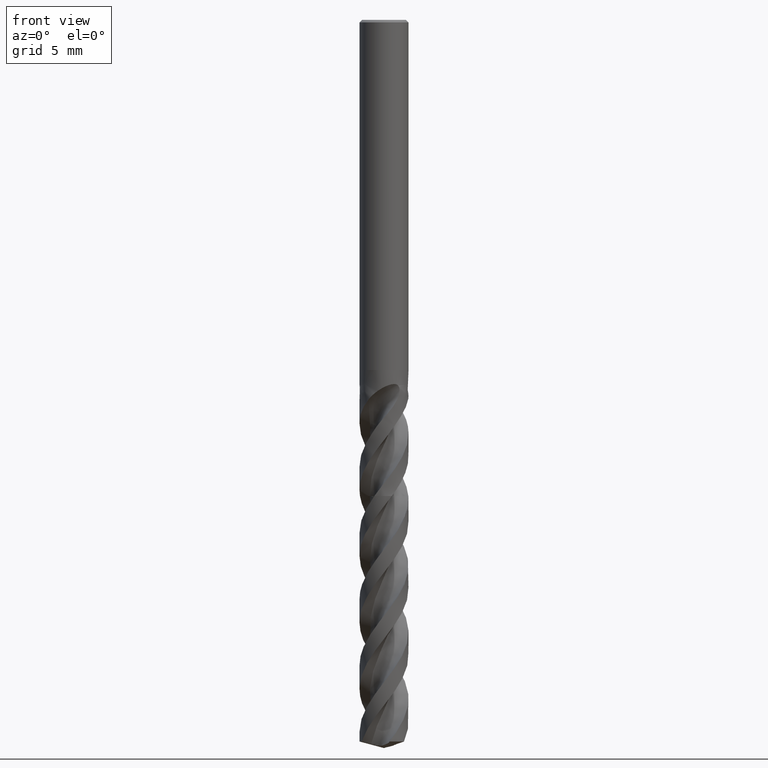
[diagram: clean part render]
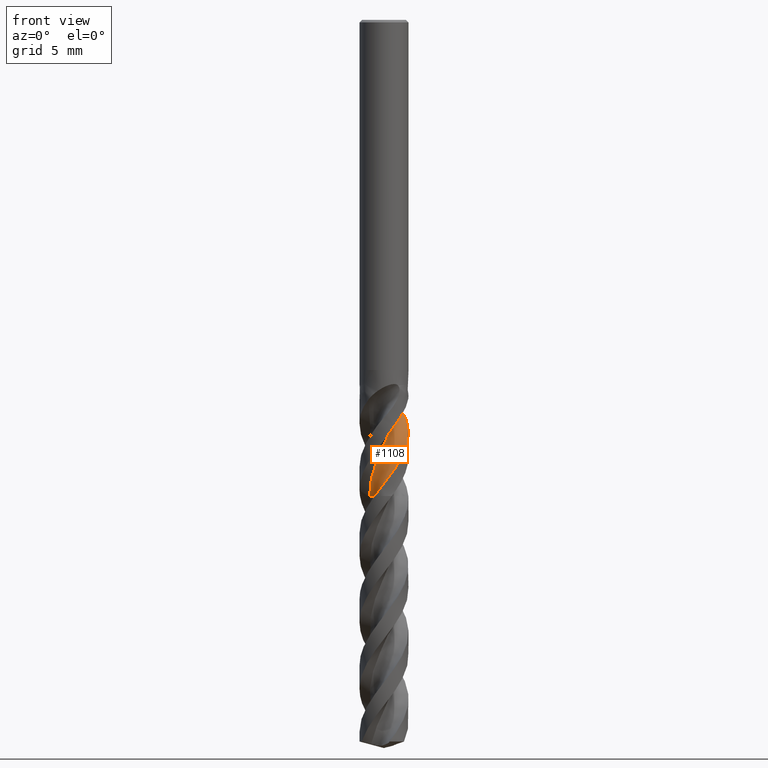
[diagram: same view with one face highlighted and labeled with its STEP entity id]
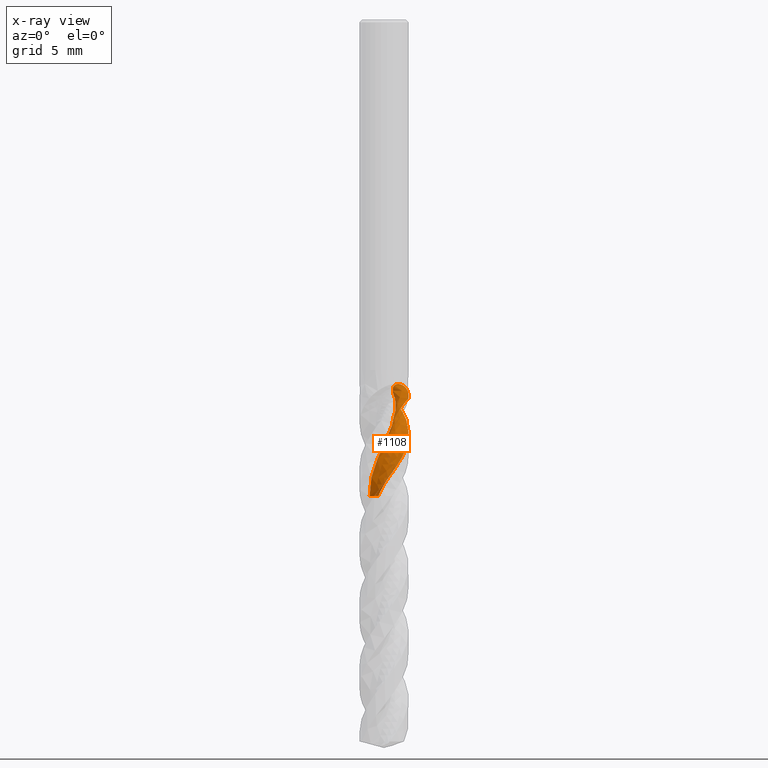
[diagram: x-ray of the same camera — body ghosted, the highlighted face saturated]
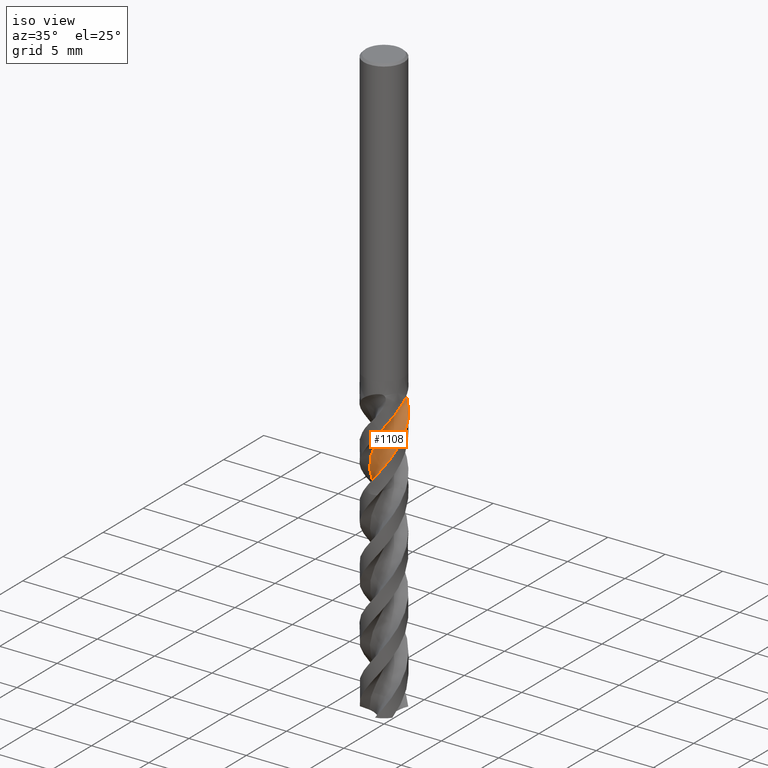
[diagram: same view with one face highlighted and labeled with its STEP entity id]
A machine part, front view. The second image highlights one B-rep face of the part: STEP entity #1108.
The next image is the same camera in x-ray: the body ghosted, the highlighted face saturated — about 0% of this face is hidden behind the body in this view.
A second angle (iso view) of the same face is appended — the face is thin or edge-on in the first view.
In plain terms, the highlighted face is a freeform B-spline surface patch.
Its self-contained STEP definition (entity closure, byte-faithful):
#1108 = ADVANCED_FACE('', (#1109), #1466, .T.);
#1109 = FACE_OUTER_BOUND('', #1110, .T.);
#1110 = EDGE_LOOP('', (#1111, #1170, #1187, #1241, #1254, #1362, #1370, #1430));
#1111 = ORIENTED_EDGE('', *, *, #1112, .T.);
#1112 = EDGE_CURVE('', #1113, #1115, #1117, .T.);
#1113 = VERTEX_POINT('', #1114);
#1114 = CARTESIAN_POINT('', (-1.02503396435404, 0.0574962500611559, -34.));
#1115 = VERTEX_POINT('', #1116);
#1116 = CARTESIAN_POINT('', (-0.670502086690427, -1.59048121163814, -34.));
#1117 = B_SPLINE_CURVE_WITH_KNOTS('', 3, (#1118, #1119, #1120, #1121, #1122, #1123, #1124, #1125, #1126, #1127, #1128, #1129, #1130, #1131, #1132, #1133, #1134, #1135, #1136, #1137, #1138, #1139, #1140, #1141, #1142, #1143, #1144, #1145, #1146, #1147, #1148, #1149, #1150, #1151, #1152, #1153, #1154, #1155, #1156, #1157, #1158, #1159, #1160, #1161, #1162, #1163, #1164, #1165, #1166, #1167, #1168, #1169), .UNSPECIFIED., .F., .U., (4, 3, 3, 3, 3, 3, 3, 3, 3, 3, 3, 3, 3, 3, 3, 3, 3, 4), (0., 0.132405407620457, 0.26452279113171, 0.396361651338164, 0.527928805751393, 0.659228644875832, 0.790263296003178, 0.921032707520729, 0.97924511088179, 0.99653781199313, 1.12892224755169, 1.2610194345411, 1.39283867113027, 1.52438659398431, 1.65566742734844, 1.78668314080873, 1.91743352824384, 1.97410964366291), .UNSPECIFIED.);
#1118 = CARTESIAN_POINT('', (-1.02503396435404, 0.0574962500611571, -34.));
#1119 = CARTESIAN_POINT('', (-0.984365017716057, 0.0403513675031409, -34.));
#1120 = CARTESIAN_POINT('', (-0.944719858379053, 0.0205435400083691, -34.));
#1121 = CARTESIAN_POINT('', (-0.906589343243396, -0.00168198662342289, -34.));
#1122 = CARTESIAN_POINT('', (-0.86854177417356, -0.023859165626332, -34.));
#1123 = CARTESIAN_POINT('', (-0.831845729181654, -0.04853472036374, -34.));
#1124 = CARTESIAN_POINT('', (-0.796953582973594, -0.0754044601028292, -34.));
#1125 = CARTESIAN_POINT('', (-0.762134994654852, -0.102217554391393, -34.));
#1126 = CARTESIAN_POINT('', (-0.728970054375333, -0.131325384460391, -34.));
#1127 = CARTESIAN_POINT('', (-0.697865890028722, -0.162370626900039, -34.));
#1128 = CARTESIAN_POINT('', (-0.666825828038832, -0.193351888414717, -34.));
#1129 = CARTESIAN_POINT('', (-0.637711402415984, -0.226388932153479, -34.));
#1130 = CARTESIAN_POINT('', (-0.610878550404343, -0.26107786506152, -34.));
#1131 = CARTESIAN_POINT('', (-0.584100216799037, -0.29569631774857, -34.));
#1132 = CARTESIAN_POINT('', (-0.559485365872423, -0.332100569837447, -34.));
#1133 = CARTESIAN_POINT('', (-0.537333707619282, -0.369847363790824, -34.));
#1134 = CARTESIAN_POINT('', (-0.515226789359149, -0.407517920052274, -34.));
#1135 = CARTESIAN_POINT('', (-0.495483632540437, -0.446678004923394, -34.));
#1136 = CARTESIAN_POINT('', (-0.478343662368155, -0.486852724169463, -34.));
#1137 = CARTESIAN_POINT('', (-0.461238386827874, -0.526946121972962, -34.));
#1138 = CARTESIAN_POINT('', (-0.446656793328059, -0.56821161022846, -34.));
#1139 = CARTESIAN_POINT('', (-0.434774999812552, -0.610150780244011, -34.));
#1140 = CARTESIAN_POINT('', (-0.429485783100854, -0.62882013000434, -34.));
#1141 = CARTESIAN_POINT('', (-0.424722995394439, -0.647646686958658, -34.));
#1142 = CARTESIAN_POINT('', (-0.420498063658775, -0.66658528209467, -34.));
#1143 = CARTESIAN_POINT('', (-0.419242996396435, -0.672211221692532, -34.));
#1144 = CARTESIAN_POINT('', (-0.418035164829521, -0.677847907419188, -34.));
#1145 = CARTESIAN_POINT('', (-0.416874824821477, -0.683494145215945, -34.));
#1146 = CARTESIAN_POINT('', (-0.407991831006228, -0.726718971629147, -34.));
#1147 = CARTESIAN_POINT('', (-0.401882765183737, -0.77060679134034, -34.));
#1148 = CARTESIAN_POINT('', (-0.398623241382012, -0.814614389572454, -34.));
#1149 = CARTESIAN_POINT('', (-0.395370790115244, -0.858526499845046, -34.));
#1150 = CARTESIAN_POINT('', (-0.394942102577829, -0.902738446354551, -34.));
#1151 = CARTESIAN_POINT('', (-0.397342461853958, -0.946705367365471, -34.));
#1152 = CARTESIAN_POINT('', (-0.399737770448564, -0.99057977601053, -34.));
#1153 = CARTESIAN_POINT('', (-0.404959992877188, -1.03438985551949, -34.));
#1154 = CARTESIAN_POINT('', (-0.412945040935157, -1.07759795944374, -34.));
#1155 = CARTESIAN_POINT('', (-0.420913653962321, -1.12071713133981, -34.));
#1156 = CARTESIAN_POINT('', (-0.431666181262131, -1.16341265483257, -34.));
#1157 = CARTESIAN_POINT('', (-0.445071206552883, -1.20516270962934, -34.));
#1158 = CARTESIAN_POINT('', (-0.458449014831847, -1.2468279968327, -34.));
#1159 = CARTESIAN_POINT('', (-0.474522851128559, -1.28772088946874, -34.));
#1160 = CARTESIAN_POINT('', (-0.493097057176486, -1.32734362008863, -34.));
#1161 = CARTESIAN_POINT('', (-0.51163375286136, -1.36688633312892, -34.));
#1162 = CARTESIAN_POINT('', (-0.532735672127253, -1.40532398532777, -34.));
#1163 = CARTESIAN_POINT('', (-0.55614698579985, -1.44219057770656, -34.));
#1164 = CARTESIAN_POINT('', (-0.579510888130428, -1.47898250983156, -34.));
#1165 = CARTESIAN_POINT('', (-0.605268932053112, -1.5143579928313, -34.));
#1166 = CARTESIAN_POINT('', (-0.633110099577923, -1.54788988201845, -34.));
#1167 = CARTESIAN_POINT('', (-0.645178356162024, -1.56242488462204, -34.));
#1168 = CARTESIAN_POINT('', (-0.657651808090229, -1.57663276560389, -34.));
#1169 = CARTESIAN_POINT('', (-0.670502086690426, -1.59048121163814, -34.));
#1170 = ORIENTED_EDGE('', *, *, #1171, .T.);
#1171 = EDGE_CURVE('', #1115, #1172, #1174, .T.);
#1172 = VERTEX_POINT('', #1173);
#1173 = CARTESIAN_POINT('', (0.776613653456091, -1.56823825781211, -32.057196210719));
#1174 = (
   BOUNDED_CURVE ()
   B_SPLINE_CURVE (3, (#1175, #1176, #1177, #1178, #1179, #1180, #1181, #1182, #1183, #1184, #1185, #1186), .UNSPECIFIED., .F., .U.)
   B_SPLINE_CURVE_WITH_KNOTS ((4, 1, 1, 1, 1, 1, 1, 1, 1, 4), (18.05, 18.1633027522936, 18.4022935779817, 18.6412844036697, 18.8802752293578, 19.1192660550459, 19.3582568807339, 19.597247706422, 19.8362385321101, 19.992803789281), .UNSPECIFIED.)
   CURVE ()
   GEOMETRIC_REPRESENTATION_ITEM ()
   RATIONAL_B_SPLINE_CURVE ((1., 1., 1., 1., 1., 1., 1., 1., 1., 1., 1., 1.))
   REPRESENTATION_ITEM ('')
);
#1175 = CARTESIAN_POINT('', (-0.670502086690427, -1.59048121163814, -34.));
#1176 = CARTESIAN_POINT('', (-0.644110130928657, -1.60205461877223, -33.9622324159021));
#1177 = CARTESIAN_POINT('', (-0.561122852633073, -1.63600736280558, -33.8448012232416));
#1178 = CARTESIAN_POINT('', (-0.417526440117084, -1.68213631177825, -33.6477064220184));
#1179 = CARTESIAN_POINT('', (-0.238210933050859, -1.71953606556329, -33.4087155963303));
#1180 = CARTESIAN_POINT('', (-0.0556618844331033, -1.73792836801334, -33.1697247706422));
#1181 = CARTESIAN_POINT('', (0.12811715590546, -1.73704689534467, -32.9307339449541));
#1182 = CARTESIAN_POINT('', (0.3111022507358, -1.71683534310611, -32.6917431192661));
#1183 = CARTESIAN_POINT('', (0.491270959219669, -1.67744879627866, -32.452752293578));
#1184 = CARTESIAN_POINT('', (0.646465117619341, -1.62594324760408, -32.2412366573956));
#1185 = CARTESIAN_POINT('', (0.74011760772385, -1.58551019663542, -32.109384629776));
#1186 = CARTESIAN_POINT('', (0.776613653456098, -1.56823825781211, -32.057196210719));
#1187 = ORIENTED_EDGE('', *, *, #1188, .F.);
#1188 = EDGE_CURVE('', #1189, #1172, #1191, .T.);
#1189 = VERTEX_POINT('', #1190);
#1190 = CARTESIAN_POINT('', (1.7475997663467, 0.0916245418267728, -29.4253887050529));
#1191 = B_SPLINE_CURVE_WITH_KNOTS('', 3, (#1192, #1193, #1194, #1195, #1196, #1197, #1198, #1199, #1200, #1201, #1202, #1203, #1204, #1205, #1206, #1207, #1208, #1209, #1210, #1211, #1212, #1213, #1214, #1215, #1216, #1217, #1218, #1219, #1220, #1221, #1222, #1223, #1224, #1225, #1226, #1227, #1228, #1229, #1230, #1231, #1232, #1233, #1234, #1235, #1236, #1237, #1238, #1239, #1240), .UNSPECIFIED., .F., .U., (4, 3, 3, 3, 3, 3, 3, 3, 3, 3, 3, 3, 3, 3, 3, 3, 4), (0., 0.131169654539322, 0.170081925427484, 0.301652375633295, 0.499119600400497, 0.696553910858351, 0.828074964348964, 1.02543849097338, 1.22276281252672, 1.42005864804645, 1.71604381888126, 2.01187493289743, 2.30755149551668, 2.60307884880536, 2.89845657935721, 3.19368569565501, 3.32701559196582), .UNSPECIFIED.);
#1192 = CARTESIAN_POINT('', (1.7475997663467, 0.091624541826765, -29.4253887050529));
#1193 = CARTESIAN_POINT('', (1.74896632215303, 0.0655595535580931, -29.4604667426232));
#1194 = CARTESIAN_POINT('', (1.74975440440563, 0.0393591049020367, -29.4954716976476));
#1195 = CARTESIAN_POINT('', (1.74995097296532, 0.0130993212704739, -29.5304303150748));
#1196 = CARTESIAN_POINT('', (1.75000928621674, 0.00530919772608688, -29.5408010002457));
#1197 = CARTESIAN_POINT('', (1.75001561209934, -0.00248636873056585, -29.5511680212203));
#1198 = CARTESIAN_POINT('', (1.74996977507354, -0.0102852481280468, -29.5615321861793));
#1199 = CARTESIAN_POINT('', (1.74981479059223, -0.0366548752407004, -29.5965755752834));
#1200 = CARTESIAN_POINT('', (1.7490633631734, -0.0630576040508727, -29.6315965605627));
#1201 = CARTESIAN_POINT('', (1.7477119095987, -0.0894599410176588, -29.6665895677224));
#1202 = CARTESIAN_POINT('', (1.7456835834329, -0.129085831177982, -29.7191087466055));
#1203 = CARTESIAN_POINT('', (1.74230309574874, -0.168729016303683, -29.7715805008332));
#1204 = CARTESIAN_POINT('', (1.73755717664322, -0.208314804792377, -29.8239544545713));
#1205 = CARTESIAN_POINT('', (1.73281204859884, -0.24789399502716, -29.8763196784934));
#1206 = CARTESIAN_POINT('', (1.72669874258196, -0.287433289467683, -29.9286093278409));
#1207 = CARTESIAN_POINT('', (1.71921380420055, -0.32680865264913, -29.9808080029962));
#1208 = CARTESIAN_POINT('', (1.71422770538646, -0.35303858824234, -30.0155802000441));
#1209 = CARTESIAN_POINT('', (1.70863193600476, -0.379202751061126, -30.0503200790112));
#1210 = CARTESIAN_POINT('', (1.70242738652028, -0.405266571068639, -30.0850210479091));
#1211 = CARTESIAN_POINT('', (1.6931166964454, -0.444378540578175, -30.1370941222741));
#1212 = CARTESIAN_POINT('', (1.68242996653902, -0.483279279808176, -30.1890985692144));
#1213 = CARTESIAN_POINT('', (1.67039360856427, -0.521809536581761, -30.2410464814157));
#1214 = CARTESIAN_POINT('', (1.65835964153926, -0.560332139552838, -30.2929840744783));
#1215 = CARTESIAN_POINT('', (1.64497459828174, -0.598491773283579, -30.3448967027834));
#1216 = CARTESIAN_POINT('', (1.63028116585606, -0.636147247306013, -30.3967859039226));
#1217 = CARTESIAN_POINT('', (1.61558985459621, -0.673797285328009, -30.4486676142593));
#1218 = CARTESIAN_POINT('', (1.59958175523286, -0.71096574929479, -30.5005448113952));
#1219 = CARTESIAN_POINT('', (1.58231461891141, -0.747516184961385, -30.55241950188));
#1220 = CARTESIAN_POINT('', (1.55641028960578, -0.802349511353526, -30.6302424274611));
#1221 = CARTESIAN_POINT('', (1.52765074048619, -0.85583777204093, -30.7081263081644));
#1222 = CARTESIAN_POINT('', (1.4962078529531, -0.907668475139133, -30.7859662641378));
#1223 = CARTESIAN_POINT('', (1.46478133107511, -0.959472200962748, -30.8637657053248));
#1224 = CARTESIAN_POINT('', (1.43064001321017, -1.00967365210381, -30.941598954995));
#1225 = CARTESIAN_POINT('', (1.39400812889082, -1.05794202893462, -31.0193953185662));
#1226 = CARTESIAN_POINT('', (1.35739538220989, -1.10618518886053, -31.0971510388916));
#1227 = CARTESIAN_POINT('', (1.31825843238564, -1.15254586175322, -31.1749495880075));
#1228 = CARTESIAN_POINT('', (1.27684616192873, -1.19673049546164, -31.2527094088801));
#1229 = CARTESIAN_POINT('', (1.23545478963533, -1.2408928319695, -31.3304299892707));
#1230 = CARTESIAN_POINT('', (1.19174801974451, -1.28292631310435, -31.4081904317347));
#1231 = CARTESIAN_POINT('', (1.14600632932617, -1.32256171619488, -31.4859128793412));
#1232 = CARTESIAN_POINT('', (1.10028779749817, -1.36217705225128, -31.5635959767989));
#1233 = CARTESIAN_POINT('', (1.05249007309316, -1.39943695017953, -31.6413197923468));
#1234 = CARTESIAN_POINT('', (1.00291862557236, -1.43410398175308, -31.7190056414223));
#1235 = CARTESIAN_POINT('', (0.953372119077691, -1.46875357120252, -31.7966524041912));
#1236 = CARTESIAN_POINT('', (0.902003264560237, -1.50084814415119, -31.8743395756266));
#1237 = CARTESIAN_POINT('', (0.849140298896973, -1.53018324157244, -31.9519889738464));
#1238 = CARTESIAN_POINT('', (0.825266590846257, -1.5434314114904, -31.9870566065483));
#1239 = CARTESIAN_POINT('', (0.801080506268334, -1.55612192800289, -32.0221280703205));
#1240 = CARTESIAN_POINT('', (0.776613653456143, -1.56823825781209, -32.0571962107189));
#1241 = ORIENTED_EDGE('', *, *, #1242, .T.);
#1242 = EDGE_CURVE('', #1189, #1243, #1245, .T.);
#1243 = VERTEX_POINT('', #1244);
#1244 = CARTESIAN_POINT('', (1.6058003871535, 0.695632889258178, -28.6189986096986));
#1245 = (
   BOUNDED_CURVE ()
   B_SPLINE_CURVE (3, (#1246, #1247, #1248, #1249, #1250, #1251, #1252, #1253), .UNSPECIFIED., .F., .U.)
   B_SPLINE_CURVE_WITH_KNOTS ((4, 1, 1, 1, 1, 4), (22.6246112949471, 22.704128440367, 22.943119266055, 23.1821100917431, 23.4211009174312, 23.4310013903014), .UNSPECIFIED.)
   CURVE ()
   GEOMETRIC_REPRESENTATION_ITEM ()
   RATIONAL_B_SPLINE_CURVE ((1., 1., 1., 1., 1., 1., 1., 1.))
   REPRESENTATION_ITEM ('')
);
#1246 = CARTESIAN_POINT('', (1.7475997663467, 0.0916245418267705, -29.4253887050529));
#1247 = CARTESIAN_POINT('', (1.74440265033204, 0.111981513954545, -29.398882989913));
#1248 = CARTESIAN_POINT('', (1.72939112586799, 0.193060486089707, -29.2927136662103));
#1249 = CARTESIAN_POINT('', (1.68621377132011, 0.330698988807473, -29.106880733945));
#1250 = CARTESIAN_POINT('', (1.63463219491865, 0.502995629818033, -28.8678899082569));
#1251 = CARTESIAN_POINT('', (1.61433755129518, 0.626722244924239, -28.7052625335081));
#1252 = CARTESIAN_POINT('', (1.60612379209804, 0.692991718916425, -28.622298767322));
#1253 = CARTESIAN_POINT('', (1.6058003871535, 0.695632889258178, -28.6189986096986));
#1254 = ORIENTED_EDGE('', *, *, #1255, .F.);
#1255 = EDGE_CURVE('', #1256, #1243, #1258, .T.);
#1256 = VERTEX_POINT('', #1257);
#1257 = CARTESIAN_POINT('', (1.01261524027845, 1.42727375620651, -26.));
#1258 = B_SPLINE_CURVE_WITH_KNOTS('', 3, (#1259, #1260, #1261, #1262, #1263, #1264, #1265, #1266, #1267, #1268, #1269, #1270, #1271, #1272, #1273, #1274, #1275, #1276, #1277, #1278, #1279, #1280, #1281, #1282, #1283, #1284, #1285, #1286, #1287, #1288, #1289, #1290, #1291, #1292, #1293, #1294, #1295, #1296, #1297, #1298, #1299, #1300, #1301, #1302, #1303, #1304, #1305, #1306, #1307, #1308, #1309, #1310, #1311, #1312, #1313, #1314, #1315, #1316, #1317, #1318, #1319, #1320, #1321, #1322, #1323, #1324, #1325, #1326, #1327, #1328, #1329, #1330, #1331, #1332, #1333, #1334, #1335, #1336, #1337, #1338, #1339, #1340, #1341, #1342, #1343, #1344, #1345, #1346, #1347, #1348, #1349, #1350, #1351, #1352, #1353, #1354, #1355, #1356, #1357, #1358, #1359, #1360, #1361), .UNSPECIFIED., .F., .U., (4, 3, 3, 3, 3, 3, 3, 3, 3, 3, 3, 3, 3, 3, 3, 3, 3, 3, 3, 3, 3, 3, 3, 3, 3, 3, 3, 3, 3, 3, 3, 3, 3, 3, 4), (0., 0.0875844612406035, 0.174932141885667, 0.233022593846717, 0.291011036760794, 0.348920067352457, 0.406798837848354, 0.464712929379868, 0.522718809964942, 0.58084345406548, 0.639085000069199, 0.697425768615386, 0.723376629193764, 0.749333290167307, 0.837118180228741, 0.925004971201658, 1.01295317366869, 1.10093564998352, 1.18893488805992, 1.32126554688434, 1.45357119877346, 1.58582783418274, 1.71802428260051, 1.85015072213741, 1.98220307252794, 2.11417849084929, 2.24607472130825, 2.37789399823027, 2.57577025781783, 2.77340776581042, 2.90493782312489, 3.0364092335695, 3.16782471897045, 3.2991899763772, 3.34747571613129), .UNSPECIFIED.);
#1259 = CARTESIAN_POINT('', (1.01261524027785, 1.42727375620693, -26.));
#1260 = CARTESIAN_POINT('', (0.98880439279298, 1.4441669604309, -26.0000270569452));
#1261 = CARTESIAN_POINT('', (0.964502317400236, 1.46050473997682, -26.0016497428392));
#1262 = CARTESIAN_POINT('', (0.940073632017233, 1.47606285990331, -26.0053269392971));
#1263 = CARTESIAN_POINT('', (0.915710988470777, 1.4915789191623, -26.0089941946221));
#1264 = CARTESIAN_POINT('', (0.891070222350059, 1.50641043392762, -26.0147380666722));
#1265 = CARTESIAN_POINT('', (0.866831420548357, 1.52023132724928, -26.023056639394));
#1266 = CARTESIAN_POINT('', (0.850711439556799, 1.52942289288253, -26.0285888944638));
#1267 = CARTESIAN_POINT('', (0.834698694506526, 1.53820985457679, -26.0352882493131));
#1268 = CARTESIAN_POINT('', (0.819102817535852, 1.54647035998264, -26.043255506311));
#1269 = CARTESIAN_POINT('', (0.803534327519364, 1.55471635962626, -26.0512087725021));
#1270 = CARTESIAN_POINT('', (0.788299873807475, 1.56248048069948, -26.060474388859));
#1271 = CARTESIAN_POINT('', (0.773783270517375, 1.56963672557297, -26.0710425118167));
#1272 = CARTESIAN_POINT('', (0.759286547001982, 1.57678317032084, -26.0815961622495));
#1273 = CARTESIAN_POINT('', (0.745415435303573, 1.58336865080583, -26.093522729877));
#1274 = CARTESIAN_POINT('', (0.732557370846534, 1.58929534650373, -26.1066433494964));
#1275 = CARTESIAN_POINT('', (0.719706025311534, 1.59521894523425, -26.1197571129968));
#1276 = CARTESIAN_POINT('', (0.707777935278885, 1.60052709267442, -26.1341575274556));
#1277 = CARTESIAN_POINT('', (0.697058302461695, 1.60518214635263, -26.1495079947007));
#1278 = CARTESIAN_POINT('', (0.686332127893025, 1.60984004081883, -26.1648678297052));
#1279 = CARTESIAN_POINT('', (0.676739557291263, 1.61387886712124, -26.181281491346));
#1280 = CARTESIAN_POINT('', (0.668400032834053, 1.61732538349815, -26.1983473985822));
#1281 = CARTESIAN_POINT('', (0.660047290919109, 1.62077736231897, -26.2154403538723));
#1282 = CARTESIAN_POINT('', (0.652895938176399, 1.62365891030124, -26.2332864997455));
#1283 = CARTESIAN_POINT('', (0.646920101884528, 1.62603640235319, -26.2515208214489));
#1284 = CARTESIAN_POINT('', (0.640932030431002, 1.62841876217564, -26.2697924768179));
#1285 = CARTESIAN_POINT('', (0.636090784626123, 1.63030829630663, -26.2885386812293));
#1286 = CARTESIAN_POINT('', (0.632288586462646, 1.63178158569984, -26.3074796087533));
#1287 = CARTESIAN_POINT('', (0.628478741212319, 1.6332578382137, -26.3264586307983));
#1288 = CARTESIAN_POINT('', (0.625695580203893, 1.63432222626507, -26.3456994131973));
#1289 = CARTESIAN_POINT('', (0.623804125627197, 1.63504385655263, -26.3650074211063));
#1290 = CARTESIAN_POINT('', (0.621909448695586, 1.63576671623736, -26.3843483228817));
#1291 = CARTESIAN_POINT('', (0.620903222406118, 1.63614768885069, -26.4038056356668));
#1292 = CARTESIAN_POINT('', (0.620653514230068, 1.63624240724713, -26.4232507245722));
#1293 = CARTESIAN_POINT('', (0.620542440238014, 1.6362845394295, -26.4319001956657));
#1294 = CARTESIAN_POINT('', (0.620581012648254, 1.63626991746448, -26.4405531396085));
#1295 = CARTESIAN_POINT('', (0.620758555912454, 1.63620255936161, -26.4492013419665));
#1296 = CARTESIAN_POINT('', (0.620936138860158, 1.63613518620324, -26.4578514773238));
#1297 = CARTESIAN_POINT('', (0.621252802181335, 1.63601503146013, -26.4664994511015));
#1298 = CARTESIAN_POINT('', (0.621698542556895, 1.63584562908076, -26.4751385213579));
#1299 = CARTESIAN_POINT('', (0.623206027279384, 1.63527271374069, -26.5043556781203));
#1300 = CARTESIAN_POINT('', (0.626186817715095, 1.63413880946709, -26.5335120376779));
#1301 = CARTESIAN_POINT('', (0.630314683452785, 1.63254506823665, -26.5624371773457));
#1302 = CARTESIAN_POINT('', (0.63444734082695, 1.63094947698757, -26.5913958933851));
#1303 = CARTESIAN_POINT('', (0.639738646706134, 1.62888889116006, -26.6201815771281));
#1304 = CARTESIAN_POINT('', (0.645942311194981, 1.62642507685048, -26.6487065866638));
#1305 = CARTESIAN_POINT('', (0.652150310536666, 1.62395954093386, -26.6772515282444));
#1306 = CARTESIAN_POINT('', (0.659280955029862, 1.6210863639152, -26.7055734732337));
#1307 = CARTESIAN_POINT('', (0.667145950026533, 1.61784309540919, -26.7336279715561));
#1308 = CARTESIAN_POINT('', (0.675014010050502, 1.61459856298547, -26.7616934028547));
#1309 = CARTESIAN_POINT('', (0.68362480800121, 1.610980344386, -26.7895170746825));
#1310 = CARTESIAN_POINT('', (0.692832856916971, 1.60701046430204, -26.817077076142));
#1311 = CARTESIAN_POINT('', (0.702042660081158, 1.60303982790631, -26.8446423281263));
#1312 = CARTESIAN_POINT('', (0.711856621468761, 1.59871450373127, -26.8719621692957));
#1313 = CARTESIAN_POINT('', (0.72215863586227, 1.59404733450738, -26.8990271942457));
#1314 = CARTESIAN_POINT('', (0.737650501266017, 1.58702898307907, -26.9397267805264));
#1315 = CARTESIAN_POINT('', (0.754256547263524, 1.57923188966582, -26.9798862027217));
#1316 = CARTESIAN_POINT('', (0.771667257635027, 1.57067808397967, -27.0195019956144));
#1317 = CARTESIAN_POINT('', (0.789074677850553, 1.56212589473273, -27.0591103021878));
#1318 = CARTESIAN_POINT('', (0.807303108764509, 1.5528093655623, -27.0982071208503));
#1319 = CARTESIAN_POINT('', (0.826112374643964, 1.54273728951501, -27.1368042835732));
#1320 = CARTESIAN_POINT('', (0.844914672083383, 1.53266894496146, -27.1753871468538));
#1321 = CARTESIAN_POINT('', (0.86430914088095, 1.52183951283811, -27.2134947310065));
#1322 = CARTESIAN_POINT('', (0.884097967421498, 1.51025520492438, -27.2511476385208));
#1323 = CARTESIAN_POINT('', (0.903877788516449, 1.49867616876613, -27.288783411052));
#1324 = CARTESIAN_POINT('', (0.924062652525557, 1.48633668119879, -27.3259827800019));
#1325 = CARTESIAN_POINT('', (0.944485466411022, 1.47324376928552, -27.3627693414823));
#1326 = CARTESIAN_POINT('', (0.964897464738568, 1.46015779114484, -27.3995364214559));
#1327 = CARTESIAN_POINT('', (0.985555583507783, 1.4463138775057, -27.4359065239596));
#1328 = CARTESIAN_POINT('', (1.00631156541002, 1.43172519476404, -27.4719074992318));
#1329 = CARTESIAN_POINT('', (1.02705590851395, 1.41714469254291, -27.5078882871627));
#1330 = CARTESIAN_POINT('', (1.04790651499992, 1.40181441844176, -27.543512843948));
#1331 = CARTESIAN_POINT('', (1.06873296566249, 1.38575244834938, -27.5788088491825));
#1332 = CARTESIAN_POINT('', (1.08954728309199, 1.3696998357625, -27.6140842914001));
#1333 = CARTESIAN_POINT('', (1.11034456454366, 1.35291090899217, -27.649043168426));
#1334 = CARTESIAN_POINT('', (1.13100424987394, 1.33541356394455, -27.6837173565622));
#1335 = CARTESIAN_POINT('', (1.15165153898424, 1.31792671765018, -27.7183707394994));
#1336 = CARTESIAN_POINT('', (1.172168156248, 1.29972669602256, -27.7527503599693));
#1337 = CARTESIAN_POINT('', (1.19244717014096, 1.28084727677534, -27.7868866517178));
#1338 = CARTESIAN_POINT('', (1.21271435244602, 1.26197887253651, -27.8210030269882));
#1339 = CARTESIAN_POINT('', (1.23275034989657, 1.24242610485511, -27.854886364581));
#1340 = CARTESIAN_POINT('', (1.25245581057162, 1.22223338301871, -27.8885709489352));
#1341 = CARTESIAN_POINT('', (1.28203602784239, 1.1919217293579, -27.9391354772304));
#1342 = CARTESIAN_POINT('', (1.31088346088428, 1.16015114384134, -27.9892810357267));
#1343 = CARTESIAN_POINT('', (1.33870599867802, 1.12710525200774, -28.0391251180914));
#1344 = CARTESIAN_POINT('', (1.36649496662722, 1.09409923236193, -28.0889090600726));
#1345 = CARTESIAN_POINT('', (1.39327878282347, 1.05980004894273, -28.1384235026201));
#1346 = CARTESIAN_POINT('', (1.41880841835231, 1.02444261528531, -28.1878011751721));
#1347 = CARTESIAN_POINT('', (1.43579868734747, 1.00091183247647, -28.2206625898235));
#1348 = CARTESIAN_POINT('', (1.45224106853742, 0.976904447882975, -28.2534739828004));
#1349 = CARTESIAN_POINT('', (1.46807611602451, 0.952498040711196, -28.2862736491563));
#1350 = CARTESIAN_POINT('', (1.48390410295079, 0.928102515914247, -28.3190586907353));
#1351 = CARTESIAN_POINT('', (1.49912959587539, 0.903301568287751, -28.3518409281104));
#1352 = CARTESIAN_POINT('', (1.51370196591796, 0.878183556198098, -28.384662525445));
#1353 = CARTESIAN_POINT('', (1.52826813719512, 0.853076228757817, -28.4174701611947));
#1354 = CARTESIAN_POINT('', (1.54218528716673, 0.827646170055323, -28.4503270124389));
#1355 = CARTESIAN_POINT('', (1.55541704284743, 0.801983679896905, -28.483270136772));
#1356 = CARTESIAN_POINT('', (1.56864374125087, 0.776330998136659, -28.5162006699934));
#1357 = CARTESIAN_POINT('', (1.58118924022046, 0.750439034649989, -28.5492264877576));
#1358 = CARTESIAN_POINT('', (1.59302945965092, 0.724401229074266, -28.5823816914975));
#1359 = CARTESIAN_POINT('', (1.59738155217018, 0.714830550124474, -28.5945685023094));
#1360 = CARTESIAN_POINT('', (1.60163878970539, 0.705239529335939, -28.6067736133502));
#1361 = CARTESIAN_POINT('', (1.6058003871535, 0.69563288925818, -28.6189986096986));
#1362 = ORIENTED_EDGE('', *, *, #1363, .T.);
#1363 = EDGE_CURVE('', #1256, #1364, #1366, .T.);
#1364 = VERTEX_POINT('', #1365);
#1365 = CARTESIAN_POINT('', (1.01382439587724, 1.42641511991571, -26.));
#1366 = LINE('', #1367, #1368);
#1367 = CARTESIAN_POINT('', (1.01261524027845, 1.42727375620651, -26.));
#1368 = VECTOR('', #1369, 0.00148300827440445);
#1369 = DIRECTION('', (0.00120915559879053, -0.000858636290792303, 0.));
#1370 = ORIENTED_EDGE('', *, *, #1371, .T.);
#1371 = EDGE_CURVE('', #1364, #1372, #1374, .T.);
#1372 = VERTEX_POINT('', #1373);
#1373 = CARTESIAN_POINT('', (1.73719088393138, -0.211347658576396, -27.039909065144));
#1374 = B_SPLINE_CURVE_WITH_KNOTS('', 3, (#1375, #1376, #1377, #1378, #1379, #1380, #1381, #1382, #1383, #1384, #1385, #1386, #1387, #1388, #1389, #1390, #1391, #1392, #1393, #1394, #1395, #1396, #1397, #1398, #1399, #1400, #1401, #1402, #1403, #1404, #1405, #1406, #1407, #1408, #1409, #1410, #1411, #1412, #1413, #1414, #1415, #1416, #1417, #1418, #1419, #1420, #1421, #1422, #1423, #1424, #1425, #1426, #1427, #1428, #1429), .UNSPECIFIED., .F., .U., (4, 3, 3, 3, 3, 3, 3, 3, 3, 3, 3, 3, 3, 3, 3, 3, 3, 3, 4), (0., 0.0878159693228101, 0.175357517395964, 0.262715720150828, 0.349948813560279, 0.437094431365041, 0.567361869214471, 0.697481967765459, 0.827507271015767, 0.957470186978135, 1.08739167749078, 1.21728582212301, 1.41099709402477, 1.60469714174492, 1.79842092648784, 1.8853488482334, 1.91124643097148, 2.10707068462682, 2.18737363709461), .UNSPECIFIED.);
#1375 = CARTESIAN_POINT('', (1.01382439587834, 1.42641511991493, -26.));
#1376 = CARTESIAN_POINT('', (1.03768381926346, 1.40945703726304, -26.0000270895962));
#1377 = CARTESIAN_POINT('', (1.06114288378107, 1.39187802388434, -26.0016495818395));
#1378 = CARTESIAN_POINT('', (1.0840126098575, 1.3738328361449, -26.0045124849085));
#1379 = CARTESIAN_POINT('', (1.10681086899167, 1.3558440388662, -26.0073664415246));
#1380 = CARTESIAN_POINT('', (1.12908439450183, 1.33734594215469, -26.0114612130522));
#1381 = CARTESIAN_POINT('', (1.15073385795499, 1.31845044964004, -26.0165369997172));
#1382 = CARTESIAN_POINT('', (1.17233797919231, 1.29959453147798, -26.0216021557531));
#1383 = CARTESIAN_POINT('', (1.19336146574494, 1.28030834088024, -26.0276545572203));
#1384 = CARTESIAN_POINT('', (1.21375029147149, 1.26067848000704, -26.0345031963137));
#1385 = CARTESIAN_POINT('', (1.23410991750575, 1.24107673188076, -26.0413420271838));
#1386 = CARTESIAN_POINT('', (1.25386571123782, 1.22110496130321, -26.0489851828382));
#1387 = CARTESIAN_POINT('', (1.27298753194151, 1.20083418652263, -26.0572896498471));
#1388 = CARTESIAN_POINT('', (1.29209017766512, 1.18058373887034, -26.0655857893022));
#1389 = CARTESIAN_POINT('', (1.31058177904997, 1.16001226994395, -26.0745517658455));
#1390 = CARTESIAN_POINT('', (1.32844546544033, 1.13918069038718, -26.0840781311196));
#1391 = CARTESIAN_POINT('', (1.3551485483404, 1.10804112693494, -26.0983183789662));
#1392 = CARTESIAN_POINT('', (1.38049223198492, 1.07626852018408, -26.1138321852074));
#1393 = CARTESIAN_POINT('', (1.40445073398576, 1.04403933633118, -26.1303482863559));
#1394 = CARTESIAN_POINT('', (1.42838213766537, 1.01184660537408, -26.1468457069285));
#1395 = CARTESIAN_POINT('', (1.45097248336785, 0.979144003322803, -26.1643727496787));
#1396 = CARTESIAN_POINT('', (1.47221637574068, 0.946086118173706, -26.1827336363791));
#1397 = CARTESIAN_POINT('', (1.49344479147932, 0.913052316407556, -26.2010811467771));
#1398 = CARTESIAN_POINT('', (1.51335903643668, 0.879617032486597, -26.2202882624973));
#1399 = CARTESIAN_POINT('', (1.5319658061674, 0.845920072308185, -26.2402083987073));
#1400 = CARTESIAN_POINT('', (1.5505636482058, 0.812239280228633, -26.2601189770602));
#1401 = CARTESIAN_POINT('', (1.56787821268382, 0.778255809321027, -26.2807668997284));
#1402 = CARTESIAN_POINT('', (1.5839245957904, 0.744098699669758, -26.3020392306634));
#1403 = CARTESIAN_POINT('', (1.59996586414073, 0.709952477536809, -26.3233047810804));
#1404 = CARTESIAN_POINT('', (1.61475726744006, 0.675595664338783, -26.3452178050687));
#1405 = CARTESIAN_POINT('', (1.62832058445096, 0.64114902655646, -26.3676894758552));
#1406 = CARTESIAN_POINT('', (1.64188104665435, 0.60670963910381, -26.3901564168035));
#1407 = CARTESIAN_POINT('', (1.65422725835246, 0.572146787288718, -26.4132039729603));
#1408 = CARTESIAN_POINT('', (1.6653868839667, 0.537574670824566, -26.4367614027479));
#1409 = CARTESIAN_POINT('', (1.68202924515858, 0.48601723787354, -26.4718926220944));
#1410 = CARTESIAN_POINT('', (1.69605701945249, 0.43435779248398, -26.5082158998071));
#1411 = CARTESIAN_POINT('', (1.70758670473984, 0.382946008982633, -26.5455419567338));
#1412 = CARTESIAN_POINT('', (1.71911572196446, 0.33153720442613, -26.5828658508827));
#1413 = CARTESIAN_POINT('', (1.72816776045499, 0.28028485582086, -26.6212571333725));
#1414 = CARTESIAN_POINT('', (1.73488503029508, 0.22950802090131, -26.6605693174886));
#1415 = CARTESIAN_POINT('', (1.74160312330475, 0.178724963521307, -26.6998863191266));
#1416 = CARTESIAN_POINT('', (1.74599652145467, 0.128339566303986, -26.7401884418429));
#1417 = CARTESIAN_POINT('', (1.74823211185852, 0.078641484392233, -26.7813585899867));
#1418 = CARTESIAN_POINT('', (1.7492352681201, 0.0563409136024228, -26.7998324981898));
#1419 = CARTESIAN_POINT('', (1.74980500615281, 0.0341676549686829, -26.818489760395));
#1420 = CARTESIAN_POINT('', (1.7499578512229, 0.0121457376615593, -26.8373210869769));
#1421 = CARTESIAN_POINT('', (1.75000338685482, 0.00558496393016985, -26.8429313193215));
#1422 = CARTESIAN_POINT('', (1.75001193341097, -0.000962732036639914, -26.848557302573));
#1423 = CARTESIAN_POINT('', (1.74998394250214, -0.00749673159863852, -26.8541988093435));
#1424 = CARTESIAN_POINT('', (1.74977228958899, -0.0569034889996239, -26.8968569934679));
#1425 = CARTESIAN_POINT('', (1.74746831967945, -0.105560868413623, -26.9404337822977));
#1426 = CARTESIAN_POINT('', (1.74327984876316, -0.153216738303289, -26.9848428795985));
#1427 = CARTESIAN_POINT('', (1.74156225467241, -0.17275929742519, -27.0030540131181));
#1428 = CARTESIAN_POINT('', (1.73952754560343, -0.19214126006287, -27.0214114599225));
#1429 = CARTESIAN_POINT('', (1.73719088393138, -0.211347658576397, -27.039909065144));
#1430 = ORIENTED_EDGE('', *, *, #1431, .F.);
#1431 = EDGE_CURVE('', #1113, #1372, #1432, .T.);
#1432 = (
   BOUNDED_CURVE ()
   B_SPLINE_CURVE (3, (#1433, #1434, #1435, #1436, #1437, #1438, #1439, #1440, #1441, #1442, #1443, #1444, #1445, #1446, #1447, #1448, #1449, #1450, #1451, #1452, #1453, #1454, #1455, #1456, #1457, #1458, #1459, #1460, #1461, #1462, #1463, #1464, #1465), .UNSPECIFIED., .F., .U.)
   B_SPLINE_CURVE_WITH_KNOTS ((4, 1, 1, 1, 1, 1, 1, 1, 1, 1, 1, 1, 1, 1, 1, 1, 1, 1, 1, 1, 1, 1, 1, 1, 1, 1, 1, 1, 1, 1, 4), (18.05, 18.1633027522936, 18.4022935779817, 18.6412844036697, 18.8802752293578, 19.1192660550459, 19.3582568807339, 19.597247706422, 19.8362385321101, 20.0752293577982, 20.3142201834862, 20.5532110091743, 20.7922018348624, 21.0311926605505, 21.2701834862385, 21.5091743119266, 21.7481651376147, 21.9871559633028, 22.2261467889908, 22.4651376146789, 22.704128440367, 22.943119266055, 23.1821100917431, 23.4211009174312, 23.6600917431193, 23.8990825688073, 24.1380733944954, 24.3770642201835, 24.6160550458716, 24.8550458715596, 25.010090934856), .UNSPECIFIED.)
   CURVE ()
   GEOMETRIC_REPRESENTATION_ITEM ()
   RATIONAL_B_SPLINE_CURVE ((1., 1., 1., 1., 1., 1., 1., 1., 1., 1., 1., 1., 1., 1., 1., 1., 1., 1., 1., 1., 1., 1., 1., 1., 1., 1., 1., 1., 1., 1., 1., 1., 1.))
   REPRESENTATION_ITEM ('')
);
#1433 = CARTESIAN_POINT('', (-1.02503396435404, 0.0574962500611559, -34.));
#1434 = CARTESIAN_POINT('', (-1.02623860273613, 0.0403976915363479, -33.9622324159021));
#1435 = CARTESIAN_POINT('', (-1.02866032092906, -0.0128795115407825, -33.8448012232416));
#1436 = CARTESIAN_POINT('', (-1.02578090866615, -0.10254313373817, -33.6477064220184));
#1437 = CARTESIAN_POINT('', (-1.01086787887488, -0.210469540307712, -33.4087155963303));
#1438 = CARTESIAN_POINT('', (-0.984660812207771, -0.316405776745852, -33.1697247706422));
#1439 = CARTESIAN_POINT('', (-0.947411233094198, -0.419176257740125, -32.9307339449541));
#1440 = CARTESIAN_POINT('', (-0.89949238913904, -0.51763598151659, -32.6917431192661));
#1441 = CARTESIAN_POINT('', (-0.841395641848165, -0.610683062415032, -32.452752293578));
#1442 = CARTESIAN_POINT('', (-0.773725572543447, -0.697270874608891, -32.2137614678899));
#1443 = CARTESIAN_POINT('', (-0.697193849814903, -0.776419549051545, -31.9747706422018));
#1444 = CARTESIAN_POINT('', (-0.612611920638973, -0.847227171413588, -31.7357798165138));
#1445 = CARTESIAN_POINT('', (-0.520882590739192, -0.908878794218001, -31.4967889908257));
#1446 = CARTESIAN_POINT('', (-0.422990606443167, -0.96065974803854, -31.2577981651376));
#1447 = CARTESIAN_POINT('', (-0.319992232194863, -1.00194853134182, -31.0188073394495));
#1448 = CARTESIAN_POINT('', (-0.213004310690949, -1.03228106206439, -30.7798165137615));
#1449 = CARTESIAN_POINT('', (-0.103191500893893, -1.05114332600854, -30.5408256880734));
#1450 = CARTESIAN_POINT('', (0.00824288169510544, -1.05877201254044, -30.3018348623853));
#1451 = CARTESIAN_POINT('', (0.120082074810508, -1.05318732683506, -30.0628440366973));
#1452 = CARTESIAN_POINT('', (0.229953295108531, -1.03154526829501, -29.8238532110092));
#1453 = CARTESIAN_POINT('', (0.335241491103267, -0.994812522271907, -29.5848623853211));
#1454 = CARTESIAN_POINT('', (0.43443961327459, -0.944927015117173, -29.345871559633));
#1455 = CARTESIAN_POINT('', (0.522489094137076, -0.878419877207594, -29.106880733945));
#1456 = CARTESIAN_POINT('', (0.608687504331831, -0.815066302102249, -28.8678899082569));
#1457 = CARTESIAN_POINT('', (0.704574173154224, -0.761995032166006, -28.6288990825688));
#1458 = CARTESIAN_POINT('', (0.812592088215376, -0.712067718616158, -28.3899082568807));
#1459 = CARTESIAN_POINT('', (0.936334939619981, -0.660755675198644, -28.1509174311927));
#1460 = CARTESIAN_POINT('', (1.07759360822802, -0.601864409649358, -27.9119266055046));
#1461 = CARTESIAN_POINT('', (1.23698129143945, -0.528957080420379, -27.6729357798165));
#1462 = CARTESIAN_POINT('', (1.41364545051647, -0.435275967587297, -27.4339449541284));
#1463 = CARTESIAN_POINT('', (1.58283757401815, -0.328273073574023, -27.2229360492376));
#1464 = CARTESIAN_POINT('', (1.69321437554892, -0.246269418317991, -27.0915907529094));
#1465 = CARTESIAN_POINT('', (1.73719088393138, -0.211347658576396, -27.039909065144));
#1466 = (
   BOUNDED_SURFACE ()
   B_SPLINE_SURFACE (3, 2, ((#1467, #1468, #1469, #1470, #1471), (#1472, #1473, #1474, #1475, #1476), (#1477, #1478, #1479, #1480, #1481), (#1482, #1483, #1484, #1485, #1486), (#1487, #1488, #1489, #1490, #1491), (#1492, #1493, #1494, #1495, #1496), (#1497, #1498, #1499, #1500, #1501), (#1502, #1503, #1504, #1505, #1506), (#1507, #1508, #1509, #1510, #1511), (#1512, #1513, #1514, #1515, #1516), (#1517, #1518, #1519, #1520, #1521), (#1522, #1523, #1524, #1525, #1526), (#1527, #1528, #1529, #1530, #1531), (#1532, #1533, #1534, #1535, #1536), (#1537, #1538, #1539, #1540, #1541), (#1542, #1543, #1544, #1545, #1546), (#1547, #1548, #1549, #1550, #1551), (#1552, #1553, #1554, #1555, #1556), (#1557, #1558, #1559, #1560, #1561), (#1562, #1563, #1564, #1565, #1566), (#1567, #1568, #1569, #1570, #1571), (#1572, #1573, #1574, #1575, #1576), (#1577, #1578, #1579, #1580, #1581), (#1582, #1583, #1584, #1585, #1586), (#1587, #1588, #1589, #1590, #1591), (#1592, #1593, #1594, #1595, #1596), (#1597, #1598, #1599, #1600, #1601), (#1602, #1603, #1604, #1605, #1606), (#1607, #1608, #1609, #1610, #1611), (#1612, #1613, #1614, #1615, #1616), (#1617, #1618, #1619, #1620, #1621), (#1622, #1623, #1624, #1625, #1626), (#1627, #1628, #1629, #1630, #1631), (#1632, #1633, #1634, #1635, #1636), (#1637, #1638, #1639, #1640, #1641), (#1642, #1643, #1644, #1645, #1646)), .UNSPECIFIED., .F., .F., .U.)
   B_SPLINE_SURFACE_WITH_KNOTS ((4, 1, 1, 1, 1, 1, 1, 1, 1, 1, 1, 1, 1, 1, 1, 1, 1, 1, 1, 1, 1, 1, 1, 1, 1, 1, 1, 1, 1, 1, 1, 1, 1, 4), (3, 2, 3), (18.05, 18.1633027522936, 18.4022935779817, 18.6412844036697, 18.8802752293578, 19.1192660550459, 19.3582568807339, 19.597247706422, 19.8362385321101, 20.0752293577982, 20.3142201834862, 20.5532110091743, 20.7922018348624, 21.0311926605505, 21.2701834862385, 21.5091743119266, 21.7481651376147, 21.9871559633028, 22.2261467889908, 22.4651376146789, 22.704128440367, 22.943119266055, 23.1821100917431, 23.4211009174312, 23.6600917431193, 23.8990825688073, 24.1380733944954, 24.3770642201835, 24.6160550458716, 24.8550458715596, 25.0940366972477, 25.3330275229358, 25.5720183486239, 26.05), (0., 0.5, 1.), .UNSPECIFIED.)
   GEOMETRIC_REPRESENTATION_ITEM ()
   RATIONAL_B_SPLINE_SURFACE (((1., 0.887010833178222, 1., 0.887010833178222, 1.), (1., 0.887010833178222, 1., 0.887010833178222, 1.), (1., 0.887010833178222, 1., 0.887010833178222, 1.), (1., 0.887010833178222, 1., 0.887010833178222, 1.), (1., 0.887010833178222, 1., 0.887010833178222, 1.), (1., 0.887010833178222, 1., 0.887010833178222, 1.), (1., 0.887010833178222, 1., 0.887010833178222, 1.), (1., 0.887010833178222, 1., 0.887010833178222, 1.), (1., 0.887010833178222, 1., 0.887010833178222, 1.), (1., 0.887010833178222, 1., 0.887010833178222, 1.), (1., 0.887010833178222, 1., 0.887010833178222, 1.), (1., 0.887010833178222, 1., 0.887010833178222, 1.), (1., 0.887010833178222, 1., 0.887010833178222, 1.), (1., 0.887010833178222, 1., 0.887010833178222, 1.), (1., 0.887010833178222, 1., 0.887010833178222, 1.), (1., 0.887010833178222, 1., 0.887010833178222, 1.), (1., 0.887010833178222, 1., 0.887010833178222, 1.), (1., 0.887010833178222, 1., 0.887010833178222, 1.), (1., 0.887010833178222, 1., 0.887010833178222, 1.), (1., 0.887010833178222, 1., 0.887010833178222, 1.), (1., 0.887010833178222, 1., 0.887010833178222, 1.), (1., 0.887010833178222, 1., 0.887010833178222, 1.), (1., 0.887010833178222, 1., 0.887010833178222, 1.), (1., 0.887010833178222, 1., 0.887010833178222, 1.), (1., 0.887010833178222, 1., 0.887010833178222, 1.), (1., 0.887010833178222, 1., 0.887010833178222, 1.), (1., 0.887010833178222, 1., 0.887010833178222, 1.), (1., 0.887010833178222, 1., 0.887010833178222, 1.), (1., 0.887010833178222, 1., 0.887010833178222, 1.), (1., 0.887010833178222, 1., 0.887010833178222, 1.), (1., 0.887010833178222, 1., 0.887010833178222, 1.), (1., 0.887010833178222, 1., 0.887010833178222, 1.), (1., 0.887010833178222, 1., 0.887010833178222, 1.), (1., 0.887010833178222, 1., 0.887010833178222, 1.), (1., 0.887010833178222, 1., 0.887010833178222, 1.), (1., 0.887010833178222, 1., 0.887010833178222, 1.)))
   REPRESENTATION_ITEM ('')
   SURFACE ()
);
#1467 = CARTESIAN_POINT('', (-0.670502086690429, -1.59048121163814, -34.));
#1468 = CARTESIAN_POINT('', (-0.306175019621209, -1.19785441465602, -34.));
#1469 = CARTESIAN_POINT('', (-0.418826642215955, -0.674213673847532, -34.));
#1470 = CARTESIAN_POINT('', (-0.531478264810701, -0.15057293303904, -34.));
#1471 = CARTESIAN_POINT('', (-1.02503396435404, 0.0574962500611575, -34.));
#1472 = CARTESIAN_POINT('', (-0.644110130928659, -1.60205461877223, -33.9622324159021));
#1473 = CARTESIAN_POINT('', (-0.286250717641919, -1.20325185555982, -33.9622324159021));
#1474 = CARTESIAN_POINT('', (-0.407671089407776, -0.681366717867608, -33.9622324159021));
#1475 = CARTESIAN_POINT('', (-0.529091461173632, -0.159481580175395, -33.9622324159021));
#1476 = CARTESIAN_POINT('', (-1.02623860273613, 0.040397691536349, -33.9622324159021));
#1477 = CARTESIAN_POINT('', (-0.561122852633074, -1.63600736280558, -33.8448012232416));
#1478 = CARTESIAN_POINT('', (-0.223859279647235, -1.21849597560728, -33.8448012232416));
#1479 = CARTESIAN_POINT('', (-0.372418147680412, -0.702751136726545, -33.8448012232416));
#1480 = CARTESIAN_POINT('', (-0.52097701571359, -0.187006297845805, -33.8448012232416));
#1481 = CARTESIAN_POINT('', (-1.02866032092906, -0.0128795115407819, -33.8448012232416));
#1482 = CARTESIAN_POINT('', (-0.417526440117084, -1.68213631177825, -33.6477064220184));
#1483 = CARTESIAN_POINT('', (-0.117240248534625, -1.2359329101307, -33.6477064220184));
#1484 = CARTESIAN_POINT('', (-0.310511593509623, -0.734021105419458, -33.6477064220184));
#1485 = CARTESIAN_POINT('', (-0.503782938484621, -0.232109300708215, -33.6477064220184));
#1486 = CARTESIAN_POINT('', (-1.02578090866615, -0.10254313373817, -33.6477064220184));
#1487 = CARTESIAN_POINT('', (-0.238210933050859, -1.71953606556329, -33.4087155963303));
#1488 = CARTESIAN_POINT('', (0.0137555724537596, -1.24339506539891, -33.4087155963303));
#1489 = CARTESIAN_POINT('', (-0.231754250893534, -0.763892929247535, -33.4087155963303));
#1490 = CARTESIAN_POINT('', (-0.477264074240828, -0.284390793096164, -33.4087155963303));
#1491 = CARTESIAN_POINT('', (-1.01086787887488, -0.210469540307712, -33.4087155963303));
#1492 = CARTESIAN_POINT('', (-0.0556618844331033, -1.73792836801334, -33.1697247706422));
#1493 = CARTESIAN_POINT('', (0.145024662366428, -1.23704922528291, -33.1697247706422));
#1494 = CARTESIAN_POINT('', (-0.150162437006042, -0.785363956480898, -33.1697247706422));
#1495 = CARTESIAN_POINT('', (-0.445349536378513, -0.33367868767888, -33.1697247706422));
#1496 = CARTESIAN_POINT('', (-0.984660812207771, -0.316405776745852, -33.1697247706422));
#1497 = CARTESIAN_POINT('', (0.12811715590546, -1.73704689534467, -32.9307339449541));
#1498 = CARTESIAN_POINT('', (0.275119448154512, -1.21691937417237, -32.9307339449541));
#1499 = CARTESIAN_POINT('', (-0.0666270231810953, -0.798169255919286, -32.9307339449541));
#1500 = CARTESIAN_POINT('', (-0.408373494516702, -0.379419137666199, -32.9307339449541));
#1501 = CARTESIAN_POINT('', (-0.947411233094198, -0.419176257740125, -32.9307339449541));
#1502 = CARTESIAN_POINT('', (0.3111022507358, -1.71683534310611, -32.6917431192661));
#1503 = CARTESIAN_POINT('', (0.402600204854495, -1.18318043713652, -32.6917431192661));
#1504 = CARTESIAN_POINT('', (0.0179367681414753, -0.802137821764649, -32.6917431192661));
#1505 = CARTESIAN_POINT('', (-0.366726668571545, -0.421095206392773, -32.6917431192661));
#1506 = CARTESIAN_POINT('', (-0.89949238913904, -0.51763598151659, -32.6917431192661));
#1507 = CARTESIAN_POINT('', (0.491270959219669, -1.67744879627866, -32.452752293578));
#1508 = CARTESIAN_POINT('', (0.52605070339311, -1.13615692785771, -32.452752293578));
#1509 = CARTESIAN_POINT('', (0.102599204539281, -0.797194768403495, -32.452752293578));
#1510 = CARTESIAN_POINT('', (-0.320852294314548, -0.458232608949282, -32.452752293578));
#1511 = CARTESIAN_POINT('', (-0.841395641848165, -0.610683062415032, -32.452752293578));
#1512 = CARTESIAN_POINT('', (0.666624331326528, -1.6192528452491, -32.2137614678899));
#1513 = CARTESIAN_POINT('', (0.644093697518481, -1.0763199880094, -32.2137614678899));
#1514 = CARTESIAN_POINT('', (0.18642609695057, -0.783362509318952, -32.2137614678899));
#1515 = CARTESIAN_POINT('', (-0.271241503617341, -0.490405030628504, -32.2137614678899));
#1516 = CARTESIAN_POINT('', (-0.773725572543447, -0.697270874608891, -32.2137614678899));
#1517 = CARTESIAN_POINT('', (0.835208578303058, -1.54282037523687, -31.9747706422018));
#1518 = CARTESIAN_POINT('', (0.755405934319808, -1.00428281290011, -31.9747706422018));
#1519 = CARTESIAN_POINT('', (0.268488873057936, -0.760760856012358, -31.9747706422018));
#1520 = CARTESIAN_POINT('', (-0.218428188203936, -0.517238899124605, -31.9747706422018));
#1521 = CARTESIAN_POINT('', (-0.697193849814903, -0.776419549051545, -31.9747706422018));
#1522 = CARTESIAN_POINT('', (0.995136934705067, -1.44892632414238, -31.7357798165138));
#1523 = CARTESIAN_POINT('', (0.858733084827134, -0.920794617623492, -31.7357798165138));
#1524 = CARTESIAN_POINT('', (0.347874883660804, -0.729606207950788, -31.7357798165138));
#1525 = CARTESIAN_POINT('', (-0.162983317505527, -0.538417798278085, -31.7357798165138));
#1526 = CARTESIAN_POINT('', (-0.612611920638973, -0.847227171413588, -31.7357798165138));
#1527 = CARTESIAN_POINT('', (1.14460868747212, -1.33853944601681, -31.4967889908257));
#1528 = CARTESIAN_POINT('', (0.952902349946594, -0.82673278267911, -31.4967889908257));
#1529 = CARTESIAN_POINT('', (0.423696637488988, -0.690209178908344, -31.4967889908257));
#1530 = CARTESIAN_POINT('', (-0.105509074968619, -0.553685575137578, -31.4967889908257));
#1531 = CARTESIAN_POINT('', (-0.520882590739192, -0.908878794218001, -31.4967889908257));
#1532 = CARTESIAN_POINT('', (1.28193557637936, -1.21281492387255, -31.2577981651376));
#1533 = CARTESIAN_POINT('', (1.03684037839485, -0.723094818900348, -31.2577981651376));
#1534 = CARTESIAN_POINT('', (0.495104323050733, -0.642973138755361, -31.2577981651376));
#1535 = CARTESIAN_POINT('', (-0.0466317322933818, -0.562851458610374, -31.2577981651376));
#1536 = CARTESIAN_POINT('', (-0.422990606443167, -0.96065974803854, -31.2577981651376));
#1537 = CARTESIAN_POINT('', (1.40553642816241, -1.07307384779846, -31.0188073394495));
#1538 = CARTESIAN_POINT('', (1.1095672874408, -0.610984399340928, -31.0188073394495));
#1539 = CARTESIAN_POINT('', (0.561284846087467, -0.588384506887796, -31.0188073394495));
#1540 = CARTESIAN_POINT('', (0.0130024047341298, -0.565784614434664, -31.0188073394495));
#1541 = CARTESIAN_POINT('', (-0.319992232194863, -1.00194853134182, -31.0188073394495));
#1542 = CARTESIAN_POINT('', (1.51404507352247, -0.92082221564315, -30.7798165137615));
#1543 = CARTESIAN_POINT('', (1.17027512752345, -0.491613365493902, -30.7798165137615));
#1544 = CARTESIAN_POINT('', (0.621509479946057, -0.527029136805178, -30.7798165137615));
#1545 = CARTESIAN_POINT('', (0.0727438323686633, -0.562444908116454, -30.7798165137615));
#1546 = CARTESIAN_POINT('', (-0.213004310690949, -1.03228106206439, -30.7798165137615));
#1547 = CARTESIAN_POINT('', (1.60598925207594, -0.7576135076933, -30.5408256880734));
#1548 = CARTESIAN_POINT('', (1.21808583413591, -0.366238455217669, -30.5408256880734));
#1549 = CARTESIAN_POINT('', (0.674997899706347, -0.459506825134259, -30.5408256880734));
#1550 = CARTESIAN_POINT('', (0.131909965276788, -0.552775195050848, -30.5408256880734));
#1551 = CARTESIAN_POINT('', (-0.103191500893893, -1.05114332600854, -30.5408256880734));
#1552 = CARTESIAN_POINT('', (1.68106347473319, -0.585486793833446, -30.3018348623853));
#1553 = CARTESIAN_POINT('', (1.25299941704782, -0.236336560642247, -30.3018348623853));
#1554 = CARTESIAN_POINT('', (0.721464833028129, -0.386721762076913, -30.3018348623853));
#1555 = CARTESIAN_POINT('', (0.189930249008437, -0.537106963511578, -30.3018348623853));
#1556 = CARTESIAN_POINT('', (0.00824288169510544, -1.05877201254044, -30.3018348623853));
#1557 = CARTESIAN_POINT('', (1.73544518681102, -0.405249426355979, -30.0628440366973));
#1558 = CARTESIAN_POINT('', (1.27239368220052, -0.102885314404322, -30.0628440366973));
#1559 = CARTESIAN_POINT('', (0.759116069914219, -0.308765971203422, -30.0628440366973));
#1560 = CARTESIAN_POINT('', (0.245838457627917, -0.514646628002522, -30.0628440366973));
#1561 = CARTESIAN_POINT('', (0.120082074810508, -1.05318732683506, -30.0628440366973));
#1562 = CARTESIAN_POINT('', (1.7632899815192, -0.219050593037456, -29.8238532110092));
#1563 = CARTESIAN_POINT('', (1.27235657948133, 0.0319725103270432, -29.8238532110092));
#1564 = CARTESIAN_POINT('', (0.785142659969951, -0.226195652492439, -29.8238532110092));
#1565 = CARTESIAN_POINT('', (0.297928740458578, -0.484363815311922, -29.8238532110092));
#1566 = CARTESIAN_POINT('', (0.229953295108531, -1.03154526829501, -29.8238532110092));
#1567 = CARTESIAN_POINT('', (1.76465013339655, -0.0315773085313893, -29.5848623853211));
#1568 = CARTESIAN_POINT('', (1.25342259705471, 0.164922199184871, -29.5848623853211));
#1569 = CARTESIAN_POINT('', (0.79923155514767, -0.141143394925751, -29.5848623853211));
#1570 = CARTESIAN_POINT('', (0.345040513240633, -0.447208989036373, -29.5848623853211));
#1571 = CARTESIAN_POINT('', (0.335241491103267, -0.994812522271907, -29.5848623853211));
#1572 = CARTESIAN_POINT('', (1.74174209715899, 0.153688708605791, -29.345871559633));
#1573 = CARTESIAN_POINT('', (1.21753139540858, 0.29373256038962, -29.345871559633));
#1574 = CARTESIAN_POINT('', (0.802139281722674, -0.0553498541483527, -29.345871559633));
#1575 = CARTESIAN_POINT('', (0.386747168036764, -0.404432268686326, -29.345871559633));
#1576 = CARTESIAN_POINT('', (0.43443961327459, -0.944927015117173, -29.345871559633));
#1577 = CARTESIAN_POINT('', (1.68621377132011, 0.330698988807473, -29.106880733945));
#1578 = CARTESIAN_POINT('', (1.15940833441308, 0.41323243046621, -29.106880733945));
#1579 = CARTESIAN_POINT('', (0.789637711804624, 0.0290379172276657, -29.106880733945));
#1580 = CARTESIAN_POINT('', (0.419867089196172, -0.355156596010879, -29.106880733945));
#1581 = CARTESIAN_POINT('', (0.522489094137076, -0.878419877207594, -29.106880733945));
#1582 = CARTESIAN_POINT('', (1.63463219491865, 0.502995629818033, -28.8678899082569));
#1583 = CARTESIAN_POINT('', (1.10458141790641, 0.52981206620816, -28.8678899082569));
#1584 = CARTESIAN_POINT('', (0.778590043453101, 0.111001164661894, -28.8678899082569));
#1585 = CARTESIAN_POINT('', (0.452598668999797, -0.307809736884372, -28.8678899082569));
#1586 = CARTESIAN_POINT('', (0.608687504331831, -0.815066302102249, -28.8678899082569));
#1587 = CARTESIAN_POINT('', (1.60480798085807, 0.684819421473654, -28.6288990825688));
#1588 = CARTESIAN_POINT('', (1.0641561645863, 0.655449918878823, -28.6288990825688));
#1589 = CARTESIAN_POINT('', (0.778109110592728, 0.195728223695503, -28.6288990825688));
#1590 = CARTESIAN_POINT('', (0.492062056599156, -0.263993471487817, -28.6288990825688));
#1591 = CARTESIAN_POINT('', (0.704574173154224, -0.761995032166006, -28.6288990825688));
#1592 = CARTESIAN_POINT('', (1.58681969878006, 0.884073866381039, -28.3899082568807));
#1593 = CARTESIAN_POINT('', (1.03026543307846, 0.794691785600882, -28.3899082568807));
#1594 = CARTESIAN_POINT('', (0.784256534915228, 0.287521765726132, -28.3899082568807));
#1595 = CARTESIAN_POINT('', (0.538247636751998, -0.219648254148618, -28.3899082568807));
#1596 = CARTESIAN_POINT('', (0.812592088215376, -0.712067718616158, -28.3899082568807));
#1597 = CARTESIAN_POINT('', (1.57552842776858, 1.10900915115579, -28.1509174311927));
#1598 = CARTESIAN_POINT('', (0.998393197305316, 0.952836645514308, -28.1509174311927));
#1599 = CARTESIAN_POINT('', (0.795291055781507, 0.390498272407271, -28.1509174311927));
#1600 = CARTESIAN_POINT('', (0.592188914257699, -0.171840100699765, -28.1509174311927));
#1601 = CARTESIAN_POINT('', (0.936334939619981, -0.660755675198644, -28.1509174311927));
#1602 = CARTESIAN_POINT('', (1.56213854524096, 1.36596269217589, -27.9119266055046));
#1603 = CARTESIAN_POINT('', (0.961636050467441, 1.13344037428556, -27.9119266055046));
#1604 = CARTESIAN_POINT('', (0.807673101538011, 0.508168205623569, -27.9119266055046));
#1605 = CARTESIAN_POINT('', (0.653710152608581, -0.11710396303842, -27.9119266055046));
#1606 = CARTESIAN_POINT('', (1.07759360822802, -0.601864409649358, -27.9119266055046));
#1607 = CARTESIAN_POINT('', (1.536804945177, 1.65954422738168, -27.6729357798165));
#1608 = CARTESIAN_POINT('', (0.912530503315244, 1.33872357994789, -27.6729357798165));
#1609 = CARTESIAN_POINT('', (0.817262282842646, 0.643332731036555, -27.6729357798165));
#1610 = CARTESIAN_POINT('', (0.721994062370049, -0.0520581178747832, -27.6729357798165));
#1611 = CARTESIAN_POINT('', (1.23698129143945, -0.528957080420379, -27.6729357798165));
#1612 = CARTESIAN_POINT('', (1.48834585922863, 1.99222412244388, -27.4339449541284));
#1613 = CARTESIAN_POINT('', (0.842893242959699, 1.56924948084879, -27.4339449541284));
#1614 = CARTESIAN_POINT('', (0.819157373831732, 0.79791736314744, -27.4339449541284));
#1615 = CARTESIAN_POINT('', (0.795421504703766, 0.0265852454460957, -27.4339449541284));
#1616 = CARTESIAN_POINT('', (1.41364545051647, -0.435275967587297, -27.4339449541284));
#1617 = CARTESIAN_POINT('', (1.40478626260605, 2.36415069946766, -27.1949541284404));
#1618 = CARTESIAN_POINT('', (0.744225467288986, 1.82385217650585, -27.1949541284404));
#1619 = CARTESIAN_POINT('', (0.807929999928303, 0.972849949278545, -27.1949541284404));
#1620 = CARTESIAN_POINT('', (0.87163453256762, 0.121847722051241, -27.1949541284404));
#1621 = CARTESIAN_POINT('', (1.60527416550602, -0.314083404626627, -27.1949541284404));
#1622 = CARTESIAN_POINT('', (1.27372806411941, 2.772977384236, -26.9559633027523));
#1623 = CARTESIAN_POINT('', (0.607993471877664, 2.09955348958403, -26.9559633027523));
#1624 = CARTESIAN_POINT('', (0.77778035688124, 1.16795555974719, -26.9559633027523));
#1625 = CARTESIAN_POINT('', (0.947567241884816, 0.236357629910352, -26.9559633027523));
#1626 = CARTESIAN_POINT('', (1.80807334700555, -0.158903716853336, -26.9559633027523));
#1627 = CARTESIAN_POINT('', (1.08278686358044, 3.21378676813437, -26.7169724770642));
#1628 = CARTESIAN_POINT('', (0.425946106892836, 2.39155552698554, -26.7169724770642));
#1629 = CARTESIAN_POINT('', (0.722730128487171, 1.38189061321792, -26.7169724770642));
#1630 = CARTESIAN_POINT('', (1.01951415008151, 0.372225699450305, -26.7169724770642));
#1631 = CARTESIAN_POINT('', (2.01681154971313, 0.0362169343040963, -26.7169724770642));
#1632 = CARTESIAN_POINT('', (0.732517321223583, 3.83408593987303, -26.3983180428135));
#1633 = CARTESIAN_POINT('', (0.111980999585414, 2.79379707564359, -26.3983180428135));
#1634 = CARTESIAN_POINT('', (0.60821073737843, 1.68879829969771, -26.3983180428135));
#1635 = CARTESIAN_POINT('', (1.10444047517145, 0.583799523751824, -26.3983180428135));
#1636 = CARTESIAN_POINT('', (2.29422816603908, 0.356485867822658, -26.3983180428135));
#1637 = CARTESIAN_POINT('', (0.345554827295474, 4.32098450107436, -26.1593272171254));
#1638 = CARTESIAN_POINT('', (-0.213818752385077, 3.09764374992061, -26.1593272171254));
#1639 = CARTESIAN_POINT('', (0.467439820362445, 1.93775231011426, -26.1593272171254));
#1640 = CARTESIAN_POINT('', (1.14869839310997, 0.777860870307912, -26.1593272171254));
#1641 = CARTESIAN_POINT('', (2.48957970157076, 0.670628824265234, -26.1593272171254));
#1642 = CARTESIAN_POINT('', (0.0200677960632161, 4.63787255612822, -26.));
#1643 = CARTESIAN_POINT('', (-0.478025437467793, 3.2875803665848, -26.));
#1644 = CARTESIAN_POINT('', (0.342374628124878, 2.10507049398039, -26.));
#1645 = CARTESIAN_POINT('', (1.16277469371755, 0.922560621375976, -26.));
#1646 = CARTESIAN_POINT('', (2.60199221925818, 0.916333213562669, -26.));